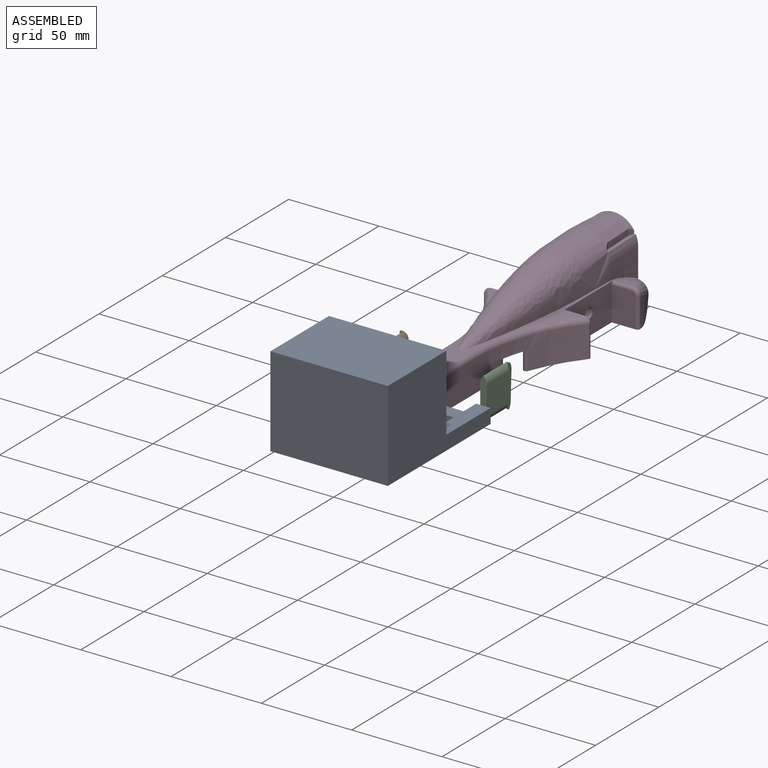
[diagram: assembled view]
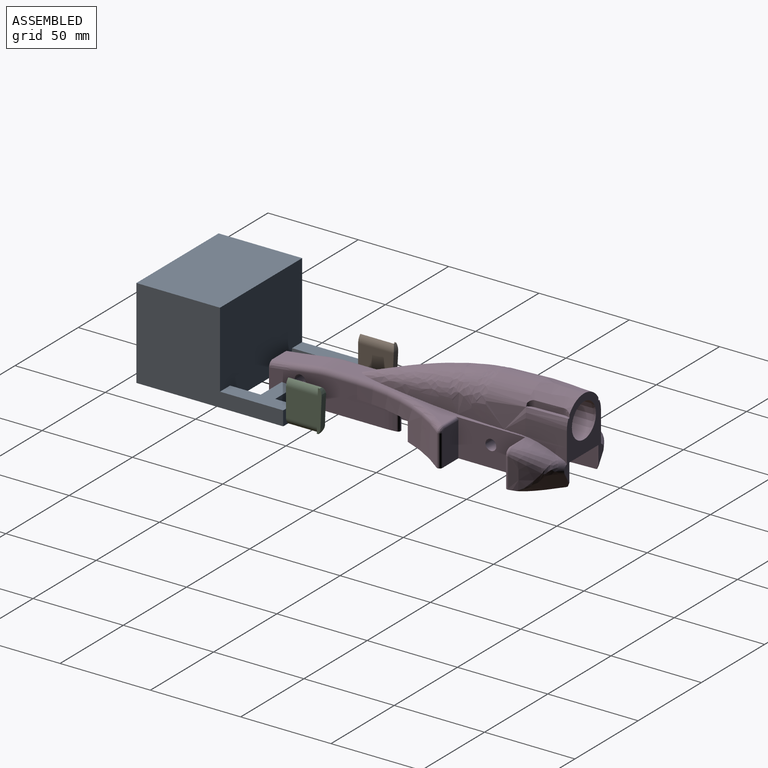
[diagram: assembled view, second angle]
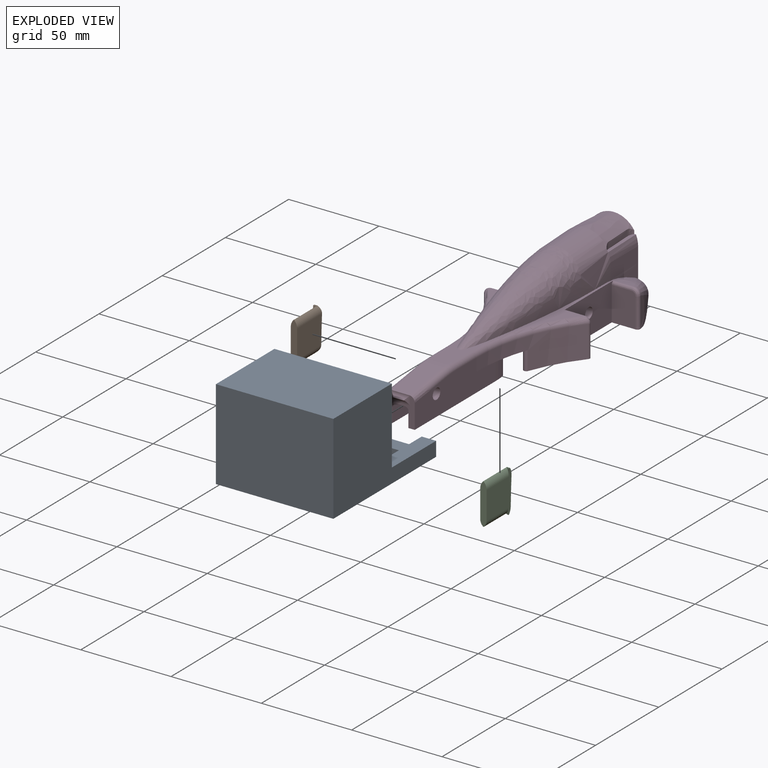
[diagram: exploded view]
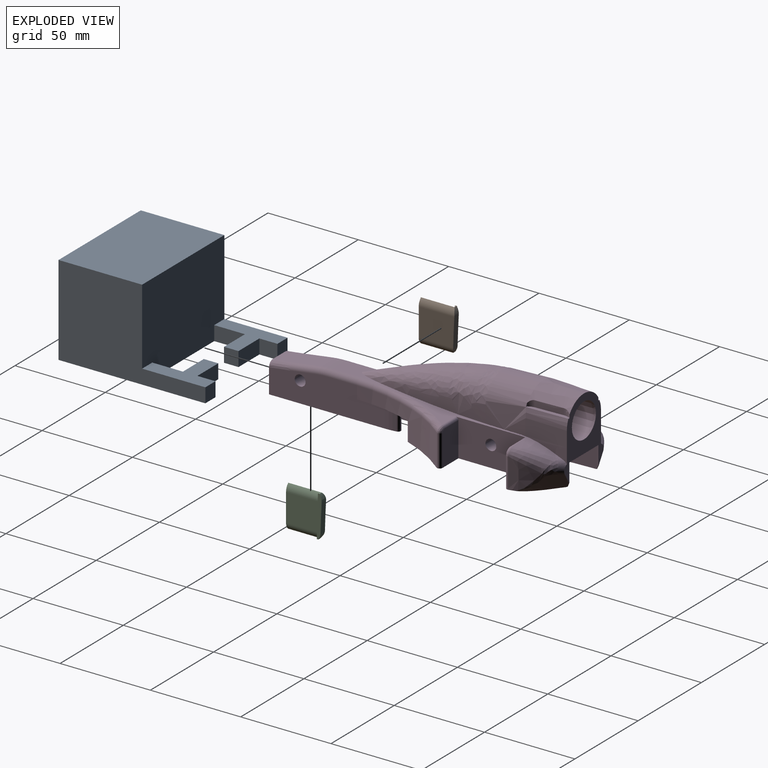
[diagram: exploded view, second angle]
ASSEMBLY  parts=4 mates=3
PART A: 20 faces, bbox 65x81.3x50 mm
  f0: plane 81.26x65mm, normal (0,0,-1), area 3831.2mm2, adj f1,f2,f4,f5,f6,f8,f9,f11
  f1: plane 16.5x8mm, normal (0,1,0), area 132mm2, adj f0,f10,f14,f19
  f2: plane 65x50mm, normal (0,1,0), area 3122mm2, adj f0,f3,f5,f6,f7,f8,f10,f11
  f3: plane 65x46.26mm, normal (0,0,1), area 3007.2mm2, adj f2,f4,f5,f6
  f4: plane 65x50mm, normal (0,-1,0), area 3250mm2, adj f0,f3,f5,f6
  f5: plane 81.26x50mm, normal (1,0,0), area 2593.2mm2, adj f0,f2,f3,f4,f10,f15
  f6: plane 81.26x50mm, normal (-1,0,0), area 2593.2mm2, adj f0,f2,f3,f4,f7,f17
  f7: plane 35x24.5mm, normal (0,0,1), area 412mm2, adj f2,f6,f8,f9,f13,f16,f17,f18
  f8: plane 17x8mm, normal (1,0,0), area 136mm2, adj f0,f2,f7,f13
  f9: plane 16.5x8mm, normal (0,1,0), area 132mm2, adj f0,f7,f16,f18
  f10: plane 35x24.5mm, normal (0,0,1), area 412mm2, adj f1,f2,f5,f11,f12,f14,f15,f19
  f11: plane 17x8mm, normal (-1,0,0), area 136mm2, adj f0,f2,f10,f12
  f12: plane 16.5x8mm, normal (0,-1,0), area 132mm2, adj f0,f10,f11,f19
  f13: plane 16.5x8mm, normal (0,-1,0), area 132mm2, adj f0,f7,f8,f18
  f14: plane 10x8mm, normal (-1,0,0), area 80mm2, adj f0,f1,f10,f15
  f15: plane 8x8mm, normal (0,1,0), area 64mm2, adj f0,f5,f10,f14
  f16: plane 10x8mm, normal (1,0,0), area 80mm2, adj f0,f7,f9,f17
  f17: plane 8x8mm, normal (0,1,0), area 64mm2, adj f0,f6,f7,f16
  f18: plane 8x8mm, normal (1,0,0), area 64mm2, adj f0,f7,f9,f13
  f19: plane 8x8mm, normal (-1,0,0), area 64mm2, adj f0,f1,f10,f12
PART B: 20 faces, bbox 26.1x105.3x21.3 mm
  f0: bspline ~105.02x18.21mm, area 2.4mm2, adj f3,f9,f10,f13
  f1: bspline ~105.02x21.04mm, area 2.8mm2, adj f2,f10,f11,f12
  f2: plane 1.76x0.84mm, normal (0,-1,0), area 0.8mm2, adj f1,f8,f10
  f3: plane 1.75x0.94mm, normal (0,1,0), area 0.9mm2, adj f0,f6,f10
  f4: extruded ~3.8x3.5mm, area 11mm2, adj f5,f6,f10,f15
  f5: extruded ~15.55x3.5mm, area 54.5mm2, adj f4,f7,f10,f19
  f6: extruded ~1.93x0.18mm, area 0.4mm2, adj f3,f4,f10,f16
  f7: extruded ~3.5x2.94mm, area 9.1mm2, adj f5,f8,f10,f17
  f8: extruded ~2.28x0.53mm, area 1.2mm2, adj f2,f7,f10,f18
  f9: cylinder r=5.37mm len=18.49mm, axis (-1,0,0), area 76mm2, adj f0,f10,f13,f14
  f10: plane 23.01x19.74mm, normal (0,0,-1), area 313.9mm2, adj f0,f1,f2,f3,f4,f5,f6,f7
  f11: cylinder r=4.16mm len=17.59mm, axis (-1,0,0), area 56.7mm2, adj f1,f10,f12,f14
  f12: plane 17.87x0.53mm, normal (0,-0.71,-0.71), area 13.3mm2, adj f1,f11,f14,f18
  f13: plane 18.61x0.18mm, normal (0,0.71,-0.71), area 4.6mm2, adj f0,f9,f14,f16
  f14: plane 23x3.5mm, normal (-1,0,0), area 72.4mm2, adj f9,f10,f11,f12,f13,f15,f16,f17
  f15: cylinder r=5.37mm len=19.72mm, axis (-1,0,0), area 81.1mm2, adj f4,f14,f16,f19
  f16: plane 18.72x0.18mm, normal (0,0.71,0.71), area 4.7mm2, adj f6,f13,f14,f15
  f17: cylinder r=4.16mm len=19.09mm, axis (-1,0,0), area 61mm2, adj f7,f14,f18,f19
  f18: plane 18.19x0.53mm, normal (0,-0.71,0.71), area 13.5mm2, adj f8,f12,f14,f17
  f19: plane 19.98x15.81mm, normal (0,0,1), area 301.1mm2, adj f5,f14,f15,f17
PART C: 20 faces, bbox 26.1x105.3x21.3 mm
  f0: bspline ~105.02x21.04mm, area 2.8mm2, adj f3,f11,f12,f19
  f1: bspline ~105.02x18.21mm, area 2.4mm2, adj f2,f17,f18,f19
  f2: plane 1.75x0.94mm, normal (0,1,0), area 0.9mm2, adj f1,f6,f19
  f3: plane 1.76x0.84mm, normal (0,-1,0), area 0.8mm2, adj f0,f4,f19
  f4: extruded ~2.28x0.53mm, area 1.2mm2, adj f3,f5,f10,f19
  f5: extruded ~3.5x2.94mm, area 9.1mm2, adj f4,f8,f13,f19
  f6: extruded ~1.93x0.18mm, area 0.4mm2, adj f2,f7,f16,f19
  f7: extruded ~3.8x3.5mm, area 11.7mm2, adj f6,f8,f14,f19
  f8: extruded ~15.55x3.5mm, area 54.5mm2, adj f5,f7,f15,f19
  f9: plane 23x3.5mm, normal (1,0,0), area 72.4mm2, adj f10,f11,f12,f13,f14,f15,f16,f17
  f10: plane 18.19x0.53mm, normal (0,-0.71,0.71), area 13.5mm2, adj f4,f9,f11,f13
  f11: plane 17.87x0.53mm, normal (0,-0.71,-0.71), area 13.3mm2, adj f0,f9,f10,f12
  f12: cylinder r=4.16mm len=17.59mm, axis (1,0,0), area 56.7mm2, adj f0,f9,f11,f19
  f13: cylinder r=4.16mm len=19.09mm, axis (1,0,0), area 61mm2, adj f5,f9,f10,f15
  f14: cylinder r=5.37mm len=19.72mm, axis (1,0,0), area 81.6mm2, adj f7,f9,f15,f16
  f15: plane 19.98x15.81mm, normal (0,0,1), area 301.1mm2, adj f8,f9,f13,f14
  f16: plane 18.72x0.18mm, normal (0,0.71,0.71), area 4.7mm2, adj f6,f9,f14,f18
  f17: cylinder r=5.37mm len=18.49mm, axis (1,0,0), area 76mm2, adj f1,f9,f18,f19
  f18: plane 18.61x0.18mm, normal (0,0.71,-0.71), area 4.6mm2, adj f1,f9,f16,f17
  f19: plane 23.01x19.74mm, normal (0,0,-1), area 313.9mm2, adj f0,f1,f2,f3,f4,f5,f6,f7
PART D: 167 faces, bbox 62.5x209.3x52.9 mm
  f0: cylinder r=46.85mm len=33.24mm, axis (-1,0,0), area 628.2mm2, adj f22,f23,f119,f139,f143,f144,f156,f157
  f1: cylinder r=24.31mm len=22.13mm, axis (1,0,0), area 143.9mm2, adj f8,f9,f11,f12,f13,f14,f55,f93
  f2: plane 40.82x31.74mm, normal (0,1,0), area 506.9mm2, adj f15,f21,f28,f29,f32,f115,f116,f121
  f3: cylinder r=40mm len=5.9mm, axis (-1,0,0), area 0.1mm2, adj f54,f120,f139,f149
  f4: plane 21.96x3.25mm, normal (0,0,-1), area 71mm2, adj f109,f117,f118,f144
  f5: plane 71.55x3.5mm, normal (0,0,-1), area 247.8mm2, adj f6,f7,f93,f94,f95,f146,f148
  f6: plane 64.05x17.5mm, normal (-1,0,0), area 925.7mm2, adj f5,f7,f10,f37,f63,f64,f65,f66
  f7: plane 16.5x16.01mm, normal (0,-1,0), area 110.9mm2, adj f5,f6,f8,f18,f19,f20,f36,f56
  f8: plane 70.06x10.5mm, normal (-1,0,0), area 576.3mm2, adj f1,f7,f12,f86,f96,f98,f99,f100
  f9: bspline ~3.79x2.05mm, area 1.5mm2, adj f1,f14,f36,f55
  f10: plane 50.23x27.77mm, normal (0,0,-1), area 797mm2, adj f6,f22,f23,f37,f38,f51,f56,f87
  f11: bspline ~3.81x2.08mm, area 1.7mm2, adj f1,f12,f36,f55
  f12: bspline ~2.59x1.31mm, area 1.4mm2, adj f1,f8,f11,f36,f99,f100
  f13: torus R=42.98mm, axis (1,0,0), area 0.6mm2, adj f1,f14,f93
  f14: bspline ~2.65x1.31mm, area 1.4mm2, adj f1,f9,f13,f36,f93,f102
  f15: bspline ~18.38x16.51mm, area 134.9mm2, adj f2,f16,f28,f31,f110,f111,f112,f161
  f16: cylinder r=1.5mm len=1.11mm, axis (-1,0,0), area 0.5mm2, adj f15,f31,f117,f161
  f17: cylinder r=3mm len=10.93mm, axis (-1,0,0), area 26.5mm2, adj f18,f19,f20,f50,f61,f66
  f18: cylinder r=3mm len=11mm, axis (-1,0,0), area 26.6mm2, adj f7,f17,f19,f20
  f19: cylinder r=3mm len=5.19mm, axis (0,0,-1), area 7.4mm2, adj f7,f17,f18,f61
  f20: cylinder r=3mm len=5.18mm, axis (0,0,-1), area 7.4mm2, adj f7,f17,f18,f66
  f21: bspline ~45x27.86mm, area 2553.6mm2, adj f2,f30,f39,f121,f122,f123,f124,f125
  f22: plane 48.25x10.5mm, normal (1,0,0), area 370.1mm2, adj f0,f10,f24,f89,f90,f120,f143
  f23: plane 48.25x10.5mm, normal (-1,0,0), area 370.1mm2, adj f0,f10,f31,f51,f85,f119,f143
  f24: plane 87.91x20.16mm, normal (0,0,-1), area 740.8mm2, adj f22,f32,f33,f37,f40,f73,f78,f81
  f25: extruded ~22.47x6.36mm, area 27.7mm2, adj f29,f30,f40,f41,f43,f53,f115,f122
  f26: extruded ~22.45x6.35mm, area 28.7mm2, adj f28,f30,f42,f45,f52,f67,f116,f121
  f27: plane 22.93x7.25mm, normal (0,0.2,-0.98), area 167.3mm2, adj f109,f117,f118,f141
  f28: bspline ~6.95x5.34mm, area 17.4mm2, adj f2,f15,f26,f110,f116
  f29: bspline ~7.07x6.75mm, area 24.2mm2, adj f2,f25,f32,f53,f113,f115
  f30: plane 111.19x51.85mm, normal (0,0,1), area 631.3mm2, adj f21,f25,f26,f39,f40,f42,f49,f57
  f31: plane 87.91x20.17mm, normal (0,0,-1), area 740.8mm2, adj f15,f16,f23,f38,f42,f68,f74,f75
  f32: bspline ~18.38x16.51mm, area 134.8mm2, adj f2,f24,f29,f108,f113,f114,f159,f160
  f33: plane 18.87x13.21mm, normal (0,-1,0), area 247.2mm2, adj f24,f40,f71,f72,f107
  f34: extruded ~11.39x2.19mm, area 13.8mm2, adj f101,f103,f145
  f35: extruded ~11.39x2.19mm, area 13.8mm2, adj f98,f104,f145
  f36: bspline ~40x9.23mm, area 20.1mm2, adj f7,f9,f11,f12,f14,f55,f99,f102
  f37: cylinder r=92.82mm len=58.55mm, axis (0,0,1), area 759.9mm2, adj f6,f10,f24,f62,f78,f88
  f38: cylinder r=92.82mm len=58.55mm, axis (0,0,1), area 759.9mm2, adj f10,f31,f56,f57,f75,f92
  f39: bspline ~135x31.11mm, area 2886mm2, adj f21,f30
  f40: plane 37.51x20.51mm, normal (-1,0,0), area 707.6mm2, adj f24,f25,f30,f33,f41,f71,f73,f80
  f41: plane 3.21x1.55mm, normal (-1,0,0), area 3mm2, adj f25,f40,f71
  f42: plane 37.51x20.51mm, normal (1,0,0), area 707.6mm2, adj f26,f30,f31,f67,f68,f69,f74,f77
  f43: bspline ~25x15mm, area 90.4mm2, adj f25,f47,f71
  f44: bspline ~25x20mm, area 145.7mm2, adj f46,f70,f83,f112
  f45: bspline ~25x15mm, area 90.3mm2, adj f26,f46,f69
  f46: bspline ~26.4x18.09mm, area 156.5mm2, adj f44,f45,f52,f69,f111
  f47: bspline ~19.24x14.69mm, area 156.5mm2, adj f43,f53,f71,f105,f113
  f48: plane 12.97x10mm, normal (0,-0.14,0.99), area 131mm2, adj f49,f50,f60,f65
  f49: cylinder r=60mm len=10mm, axis (1,0,0), area 85.1mm2, adj f30,f48,f59,f64
  f50: bspline ~11.54x10mm, area 116.4mm2, adj f17,f48,f61,f66
  f51: cylinder r=30mm len=10mm, axis (0,0,-1), area 0.4mm2, adj f10,f23,f85,f91
  f52: bspline ~9.3x9.24mm, area 0.2mm2, adj f26,f46,f110
  f53: bspline ~9.3x9.24mm, area 0.2mm2, adj f25,f29,f47
  f54: plane 2.78x0.12mm, normal (0,0,-1), area 0mm2, adj f3,f120,f149
  f55: cylinder r=2mm len=4.02mm, axis (-1,0,0), area 2.1mm2, adj f1,f9,f11,f36
  f56: plane 64.05x17.5mm, normal (1,0,0), area 925.8mm2, adj f7,f10,f38,f58,f59,f60,f61,f86
  f57: torus R=95.82mm, axis (0,0,1), area 299.3mm2, adj f30,f38,f58,f76
  f58: cylinder r=3mm len=15.74mm, axis (0,1,0), area 74.2mm2, adj f30,f56,f57,f59
  f59: torus R=57mm, axis (-1,0,0), area 39.4mm2, adj f49,f56,f58,f60
  f60: cylinder r=3mm len=13.4mm, axis (0,0.99,0.14), area 61.8mm2, adj f48,f56,f59,f61
  f61: bspline ~60.05x10.76mm, area 55.6mm2, adj f7,f17,f19,f50,f56,f60
  f62: torus R=95.82mm, axis (0,0,1), area 299.3mm2, adj f30,f37,f63,f79
  f63: cylinder r=3mm len=15.74mm, axis (0,-1,0), area 74.2mm2, adj f6,f30,f62,f64
  f64: torus R=57mm, axis (-1,0,0), area 39.4mm2, adj f6,f49,f63,f65
  f65: cylinder r=3mm len=13.4mm, axis (0,-0.99,-0.14), area 61.7mm2, adj f6,f48,f64,f66
  f66: bspline ~42.12x9.17mm, area 55.6mm2, adj f6,f7,f17,f20,f50,f65
  f67: plane 3.22x1.56mm, normal (1,0,0), area 3mm2, adj f26,f42,f69
  f68: plane 18.87x13.21mm, normal (0,-1,0), area 247.2mm2, adj f31,f42,f69,f70,f84
  f69: bspline ~18.2x4.17mm, area 38.8mm2, adj f42,f45,f46,f67,f68,f70
  f70: bspline ~26.23x1.77mm, area 41.7mm2, adj f44,f68,f69,f84
  f71: bspline ~19.2x4.15mm, area 39.3mm2, adj f33,f40,f41,f43,f47,f72
  f72: bspline ~27.22x1.77mm, area 41.7mm2, adj f33,f71,f81,f82,f105,f107
  f73: plane 19x12.64mm, normal (0,1,0), area 239.5mm2, adj f24,f40,f78,f79,f80
  f74: plane 19x12.64mm, normal (0,1,0), area 239.5mm2, adj f31,f42,f75,f76,f77
  f75: cylinder r=1.5mm len=17.5mm, axis (0,0,1), area 59.2mm2, adj f31,f38,f74,f76
  f76: bspline ~5.26x3.92mm, area 13.1mm2, adj f57,f74,f75,f77
  f77: cylinder r=1.5mm len=10.71mm, axis (1,0,0), area 25.2mm2, adj f30,f42,f74,f76
  f78: cylinder r=1.5mm len=17.5mm, axis (0,0,1), area 59.2mm2, adj f24,f37,f73,f79
  f79: bspline ~5.26x3.92mm, area 13.1mm2, adj f62,f73,f78,f80
  f80: cylinder r=1.5mm len=10.71mm, axis (1,0,0), area 25.2mm2, adj f30,f40,f73,f79
  f81: cylinder r=1.5mm len=0.5mm, axis (0,0,1), area 0.2mm2, adj f24,f72,f82,f107
  f82: extruded ~0.5x0.04mm, area 0mm2, adj f24,f72,f81,f106
  f83: extruded ~4.69x1.19mm, area 2.1mm2, adj f31,f44,f84,f112
  f84: extruded ~1.74x1.5mm, area 1.3mm2, adj f31,f68,f70,f83
  f85: extruded ~0.5x0.04mm, area 0mm2, adj f23,f31,f51,f91
  f86: plane 71.55x3.5mm, normal (0,0,-1), area 247.8mm2, adj f7,f8,f56,f96,f97
  f87: cylinder r=136.18mm len=11.45mm, axis (0,0,-1), area 120.4mm2, adj f10,f24,f88,f89,f90
  f88: cylinder r=1.5mm len=10.5mm, axis (0,0,-1), area 42.5mm2, adj f10,f24,f37,f87
  f89: extruded ~0.5x0.04mm, area 0mm2, adj f22,f24,f87,f90
  f90: cylinder r=30mm len=10mm, axis (0,0,-1), area 0.4mm2, adj f10,f22,f87,f89
  f91: cylinder r=136.18mm len=11.45mm, axis (0,0,-1), area 120.4mm2, adj f10,f31,f51,f85,f92
  f92: cylinder r=1.5mm len=10.5mm, axis (0,0,-1), area 42.5mm2, adj f10,f31,f38,f91
  f93: plane 70.06x10.5mm, normal (1,0,0), area 576.3mm2, adj f1,f5,f7,f13,f14,f94,f101,f102
  f94: cylinder r=1.5mm len=10.5mm, axis (0,0,-1), area 46.9mm2, adj f5,f10,f93,f95
  f95: cylinder r=37.75mm len=10.5mm, axis (0,0,-1), area 65.9mm2, adj f5,f6,f10,f94
  f96: cylinder r=1.5mm len=10.5mm, axis (0,0,-1), area 46.9mm2, adj f8,f10,f86,f97
  f97: cylinder r=37.75mm len=10.5mm, axis (0,0,-1), area 65.9mm2, adj f10,f56,f86,f96
  f98: cylinder r=1mm len=15.45mm, axis (0,-1,0), area 10.7mm2, adj f8,f35,f104,f145
  f99: bspline ~5.3x0.84mm, area 2.2mm2, adj f7,f8,f12,f36
  f100: torus R=42.98mm, axis (1,0,0), area 0.6mm2, adj f1,f8,f12
  f101: cylinder r=1mm len=15.45mm, axis (0,-1,0), area 10.7mm2, adj f34,f93,f103,f145
  f102: bspline ~6.21x0.9mm, area 2.2mm2, adj f7,f14,f36,f93
  f103: bspline ~21.32x2.49mm, area 42.7mm2, adj f10,f34,f93,f101
  f104: bspline ~21.32x2.49mm, area 42.7mm2, adj f8,f10,f35,f98
  f105: bspline ~25x20mm, area 145.7mm2, adj f47,f72,f106,f114
  f106: extruded ~4.69x1.19mm, area 2.1mm2, adj f24,f82,f105,f114
  f107: extruded ~1.48x1.26mm, area 1.1mm2, adj f24,f33,f72,f81
  f108: cylinder r=1.5mm len=1.11mm, axis (-1,0,0), area 0.5mm2, adj f24,f32,f118,f159
  f109: cylinder r=20mm len=22.3mm, axis (1,0,0), area 87.4mm2, adj f4,f27,f117,f118
  f110: bspline ~6.31x4.05mm, area 6.6mm2, adj f15,f28,f52,f111
  f111: bspline ~9.22x7.11mm, area 39.1mm2, adj f15,f46,f110,f112
  f112: bspline ~11.98x9.94mm, area 24.5mm2, adj f15,f31,f44,f83,f111
  f113: bspline ~8.55x6.7mm, area 39.1mm2, adj f29,f32,f47,f114
  f114: bspline ~11.98x9.94mm, area 24.5mm2, adj f24,f32,f105,f106,f113
  f115: extruded ~3.35x2.25mm, area 3.6mm2, adj f2,f25,f29,f122
  f116: extruded ~3.35x2.25mm, area 3.4mm2, adj f2,f26,f28,f121
  f117: plane 17.86x12.34mm, normal (-1,0.04,0), area 196mm2, adj f4,f16,f27,f31,f109,f119,f140,f144
  f118: plane 17.86x12.34mm, normal (1,0.04,0), area 196mm2, adj f4,f24,f27,f108,f109,f120,f142,f144
  f119: cylinder r=200mm len=10.3mm, axis (0,0,-1), area 80.2mm2, adj f0,f23,f31,f117,f144
  f120: cylinder r=200mm len=10.5mm, axis (0,0,-1), area 90.4mm2, adj f3,f22,f24,f54,f118,f139,f149
  f121: extruded ~25x6mm, area 85.1mm2, adj f2,f21,f26,f116
  f122: extruded ~45x6.03mm, area 85.8mm2, adj f2,f21,f25,f30,f115
  f123: extruded ~2.28x0.53mm, area 1.2mm2, adj f21,f124,f125,f129
  f124: plane 1.75x0.83mm, normal (0,1,0), area 0.8mm2, adj f21,f123,f125
  f125: plane 23.18x2.88mm, normal (0,0,1), area 45.3mm2, adj f2,f21,f123,f124,f126,f127,f128,f129
  f126: extruded ~1.93x0.18mm, area 0.4mm2, adj f2,f21,f125,f127
  f127: extruded ~3.8x3.5mm, area 11.7mm2, adj f21,f125,f126,f128
  f128: extruded ~15.55x3.5mm, area 54.5mm2, adj f21,f125,f127,f129
  f129: extruded ~3.5x2.94mm, area 9.1mm2, adj f21,f123,f125,f128
  f130: extruded ~1.93x0.18mm, area 0.4mm2, adj f2,f21,f132,f136
  f131: extruded ~3.5x2.94mm, area 9.1mm2, adj f21,f132,f134,f135
  f132: plane 23.18x2.88mm, normal (0,0,1), area 45.3mm2, adj f2,f21,f130,f131,f133,f134,f135,f136
  f133: plane 1.75x0.83mm, normal (0,1,0), area 0.8mm2, adj f21,f132,f134
  f134: extruded ~2.28x0.53mm, area 1.2mm2, adj f21,f131,f132,f133
  f135: extruded ~15.55x3.5mm, area 54.5mm2, adj f21,f131,f132,f136
  f136: extruded ~3.8x3.5mm, area 11mm2, adj f21,f130,f132,f135
  f137: cylinder r=3mm len=16mm, axis (-1,0,0), area 301.6mm2, adj f6,f56
  f138: cylinder r=3mm len=30mm, axis (-1,0,0), area 565.5mm2, adj f40,f42
  f139: plane 4.35x2.45mm, normal (-1,0,0), area 6.6mm2, adj f0,f3,f120,f144,f149
  f140: plane 11.63x0.8mm, normal (-1,0,0), area 8.6mm2, adj f2,f117,f141,f162
  f141: plane 22.93x0.8mm, normal (0,0,-1), area 18.4mm2, adj f2,f27,f140,f142
  f142: plane 11.63x0.8mm, normal (1,0,0), area 8.6mm2, adj f2,f118,f141,f160
  f143: cylinder r=30mm len=21mm, axis (-1,0,0), area 228.5mm2, adj f0,f10,f22,f23
  f144: cylinder r=30mm len=21.68mm, axis (-1,0,0), area 231.5mm2, adj f0,f4,f117,f118,f119,f139,f149
  f145: cylinder r=77.42mm len=23.97mm, axis (1,0,0), area 186.2mm2, adj f1,f8,f10,f34,f35,f93,f98,f101
  f146: plane 0x0mm, normal (0,-1,0), area 0mm2, adj f5,f6,f147,f148
  f147: plane 7x0mm, normal (0,0,-1), area 0mm2, adj f6,f7,f146,f148
  f148: plane 7x0mm, normal (-1,0,0), area 0mm2, adj f5,f7,f146,f147
  f149: plane 4.34x1.02mm, normal (-1,-0.04,0), area 2.4mm2, adj f3,f54,f120,f139,f144
  f150: plane 19.1x19.01mm, normal (0,1,0), area 283.5mm2, adj f151,f152
  f151: extruded ~52x18.96mm, area 2647.7mm2, adj f2,f150,f152
  f152: cylinder r=9.5mm len=52mm, axis (0,1,0), area 457.4mm2, adj f2,f150,f151
  f153: plane 9.81x0.5mm, normal (1,0,0), area 3.3mm2, adj f1,f154
  f154: plane 9.81x6mm, normal (0,0,-1), area 58.9mm2, adj f1,f153,f155
  f155: plane 9.81x0.5mm, normal (-1,0,0), area 3.3mm2, adj f1,f154
  f156: plane 13.65x0.5mm, normal (-1,0,0), area 4.6mm2, adj f0,f157
  f157: plane 13.65x6mm, normal (0,0,-1), area 81.9mm2, adj f0,f156,f158
  f158: plane 13.65x0.5mm, normal (1,0,0), area 4.6mm2, adj f0,f157
  f159: bspline ~0.7x0.4mm, area 0.2mm2, adj f32,f108,f118,f160
  f160: bspline ~6.82x3.3mm, area 0.8mm2, adj f2,f32,f142,f159
  f161: bspline ~0.7x0.4mm, area 0.2mm2, adj f15,f16,f117,f162
  f162: bspline ~6.82x3.3mm, area 0.8mm2, adj f2,f15,f140,f161
  f163: cylinder r=1mm len=3.7mm, axis (0,0,-1), area 23.3mm2, adj f1,f164
  f164: plane 2x2mm, normal (0,0,-1), area 3.1mm2, adj f163
  f165: cylinder r=1mm len=3.23mm, axis (0,0,-1), area 20.3mm2, adj f0,f166
  f166: plane 2x2mm, normal (0,0,-1), area 3.1mm2, adj f165
PLACE A at identity
PLACE B rot(axis=(0.58,0.58,0.58),120deg) t=(-35.75,-113.74,-6)mm
PLACE C rot(axis=(0.58,-0.58,-0.58),120deg) t=(35.75,-113.74,-6)mm
PLACE D at identity
MATE fastened D.f6 <-> A.f18  axis (-1,0,0) through (-8,-161.74,-29)mm
MATE fastened C.f9 <-> A.f15  axis (0,-1,0) through (28.5,-143.74,-29)mm
MATE fastened B.f14 <-> A.f17  axis (0,-1,0) through (-28.5,-143.74,-29)mm
